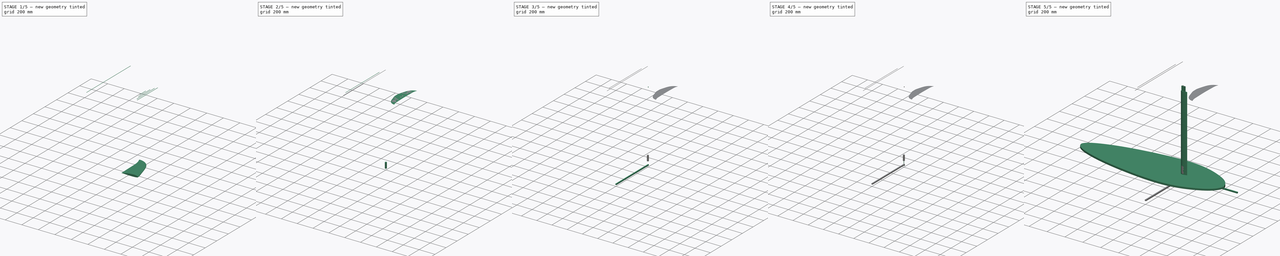
[diagram: build sequence overview — one tinted view per stage of 5, left to right]
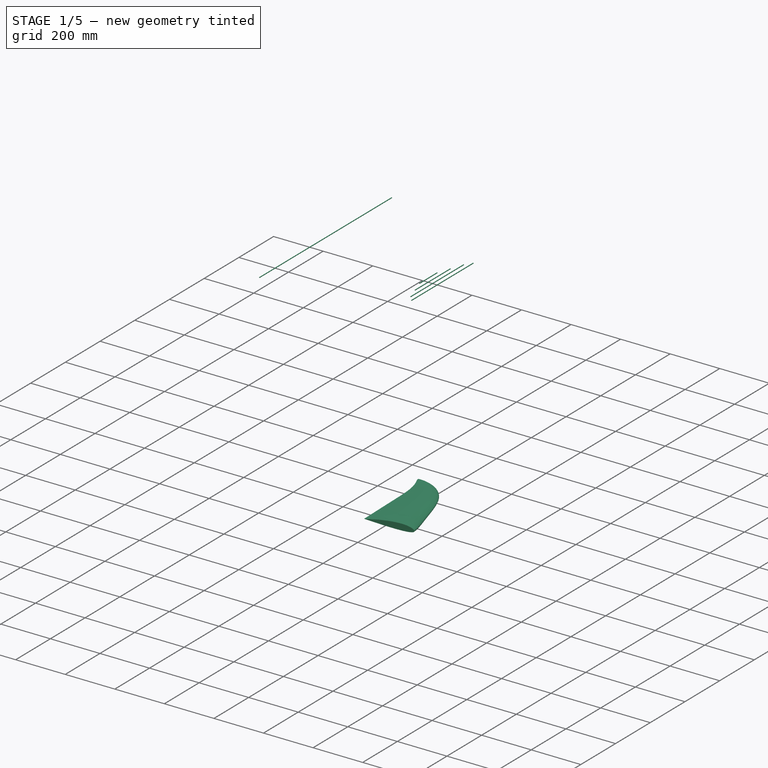
[diagram: stage 1 of 5 — iso view after this stage's code; geometry added in this stage tinted green]
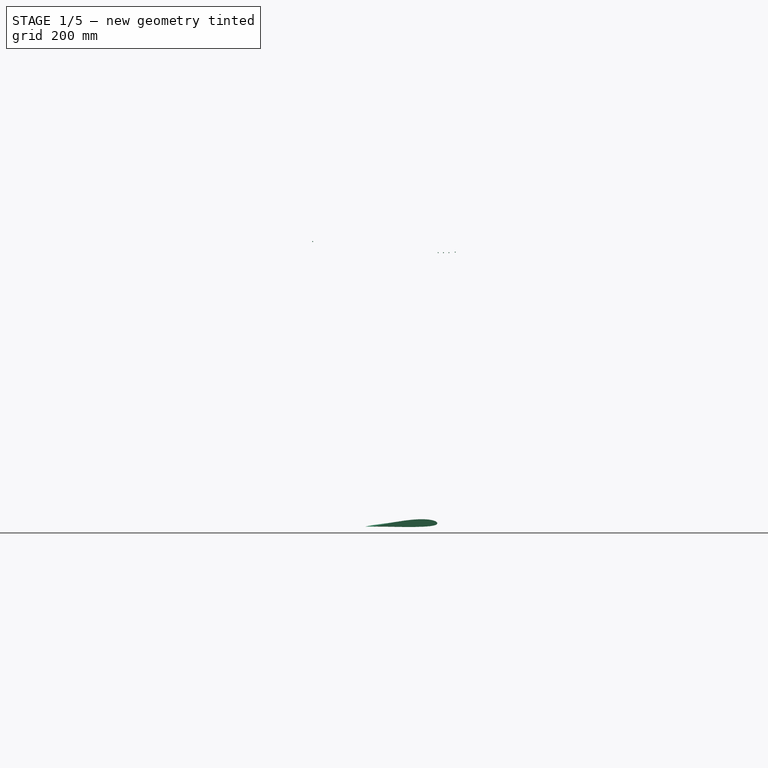
[diagram: stage 1 of 5 — front view after this stage's code; geometry added in this stage tinted green]
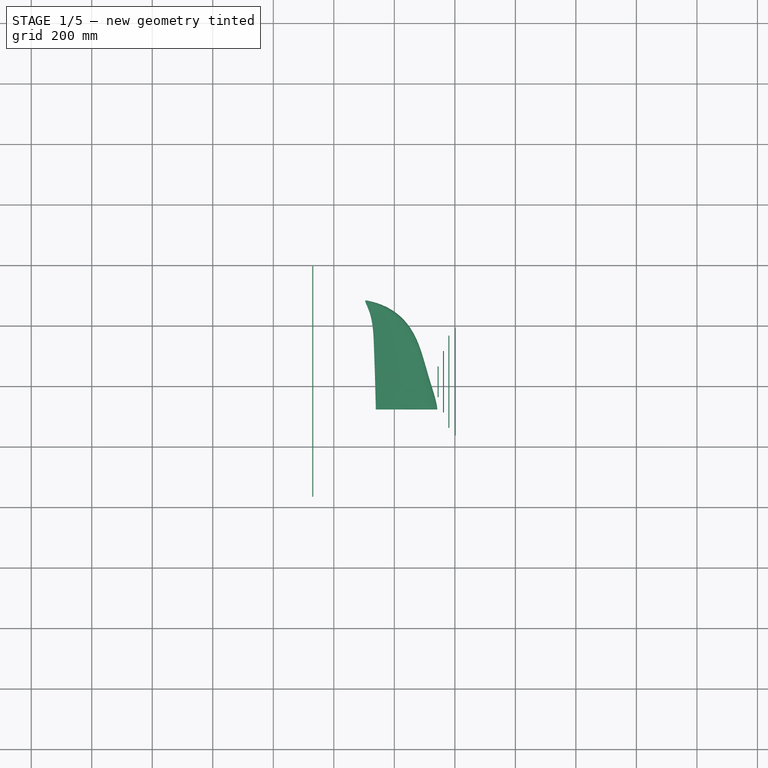
[diagram: stage 1 of 5 — top view after this stage's code; geometry added in this stage tinted green]
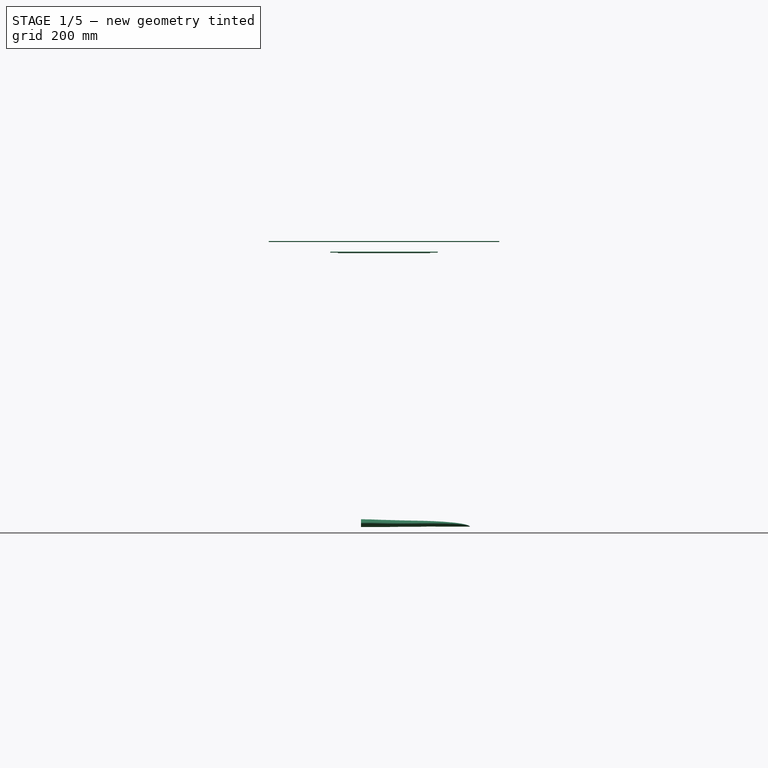
[diagram: stage 1 of 5 — right view after this stage's code; geometry added in this stage tinted green]
FCSTD DOCUMENT  (FreeCAD 0.21R33771 (Git))
Label: project1
License: All rights reserved
LicenseURL: https://en.wikipedia.org/wiki/All_rights_reserved
objects: Sketcher::SketchObject×23, PartDesign::Body×15, PartDesign::Pad×12, Part::Cylinder×9, App::DocumentObjectGroup×4, PartDesign::Fillet×2, PartDesign::AdditiveLoft×2, Part::FeaturePython×2, App::MeasureDistance×2, Part::Part2DObjectPython×1, Part::Mirroring×1, PartDesign::FeatureBase×1, Part::Helix×1
note: 85 computed .brp shape members not serialized (recipe doc carries the construction recipe); baked Part::Feature solids carry a one-line shape summary decoded from their .brp

FEATURE [PartDesign::Body] Body002  label="Board"
  Group = -> [Sketch003,Pad002,Fillet,Fillet001]
  Origin = -> Origin002
  Tip = -> Fillet001
FEATURE [Sketcher::SketchObject] Sketch006
  FullyConstrained = true
  MapMode = 5
  Placement = pos=(0,0,0) rot=(1,0,0;1.5708rad)
  Support = -> [XZ_Plane007]
  sketch-geometry (9):
    g0-g4: Circle x5 (B-spline internal-alignment scaffolding for g5; pole/knot coordinates omitted)
    g5: BSplineCurve PolesCount=5 KnotsCount=3 Degree=3 IsPeriodic=0
    g6: GeomPoint X=-61.1896 Y=1.55299 Z=0
    g7: GeomPoint X=141.928 Y=11.8848 Z=0
    g8: GeomPoint X=-61.1896 Y=1.55299 Z=0
  constraints (15):
    c: Weight(g0) = 1
    c: Equal(g0, g1-g4) x4
    c: Coincident(g5,g0)
    c: InternalAlignment(g0-g4 -> g5) x5
    c: InternalAlignment(g6,g5)
    c: InternalAlignment(g7,g5)
    c: InternalAlignment(g8,g5)
    c: DistanceX(g3) = 103.059
    c: DistanceY(g3) = -5.38655
    c: DistanceX(g1) = 89.7287
    c: DistanceY(g1) = 37.6307
    c: DistanceX(g2) = 187.462
    c: DistanceY(g2) = 7.64757
    c: DistanceX(g5) = -61.1896
    c: DistanceY(g5) = 1.55299
FEATURE [Part::Part2DObjectPython] Clone2D001  label="Wing100"  # Draft 2D object (typed FeaturePython)
  Fuse = false
  Placement = pos=(0,0,0) rot=(1,0,0;1.5708rad)
  Scale = (1,1,1)
FEATURE [Sketcher::SketchObject] Sketch007  label="Wing5"
  FullyConstrained = false
  Placement = pos=(-95.25,284.48,0) rot=(0.995037,0,0.099504;1.5708rad)
  sketch-geometry (1):
    g0: BSplineCurve PolesCount=5 KnotsCount=3 Degree=3 IsPeriodic=0
FEATURE [Sketcher::SketchObject] Sketch008  label="Wing4"
  FullyConstrained = false
  Placement = pos=(-88.9,279.4,0) rot=(0.998205,0,0.059892;1.5708rad)
  sketch-geometry (1):
    g0: BSplineCurve PolesCount=5 KnotsCount=3 Degree=3 IsPeriodic=0
FEATURE [Sketcher::SketchObject] Sketch009  label="Wing3"
  FullyConstrained = false
  Placement = pos=(-63.5,254,0) rot=(0.999201,0,0.039968;1.5708rad)
  sketch-geometry (1):
    g0: BSplineCurve PolesCount=5 KnotsCount=3 Degree=3 IsPeriodic=0
FEATURE [Sketcher::SketchObject] Sketch010  label="Wing2"
  FullyConstrained = false
  Placement = pos=(-25.4,152.4,0) rot=(0.9998,0,0.019996;1.5708rad)
  sketch-geometry (1):
    g0: BSplineCurve PolesCount=5 KnotsCount=3 Degree=3 IsPeriodic=0
FEATURE [Sketcher::SketchObject] Sketch011  label="Wing1"
  FullyConstrained = false
  Placement = pos=(0,-76.2,0) rot=(1,0,0;1.5708rad)
  sketch-geometry (1):
    g0: BSplineCurve PolesCount=5 KnotsCount=3 Degree=3 IsPeriodic=0
FEATURE [Sketcher::SketchObject] Sketch012  label="Wing1.5"
  FullyConstrained = false
  Placement = pos=(-12.7,50.8,0) rot=(-1,0,0;1.5708rad)
  sketch-geometry (1):
    g0: BSplineCurve PolesCount=5 KnotsCount=3 Degree=3 IsPeriodic=0
FEATURE [Sketcher::SketchObject] Sketch013  label="Wing1.25"
  FullyConstrained = false
  Placement = pos=(-3.81,-25.4,0) rot=(-1,0,0;1.5708rad)
  sketch-geometry (1):
    g0: BSplineCurve PolesCount=5 KnotsCount=3 Degree=3 IsPeriodic=0
FEATURE [Sketcher::SketchObject] Sketch014  label="Wing0"
  FullyConstrained = false
  Placement = pos=(0,-127,0) rot=(-1,0,0;1.5708rad)
  sketch-geometry (1):
    g0: BSplineCurve PolesCount=5 KnotsCount=3 Degree=3 IsPeriodic=0
FEATURE [Sketcher::SketchObject] Sketch015  label="Wing-1"
  FullyConstrained = false
  Placement = pos=(0,-177.8,0) rot=(-1,0,0;1.5708rad)
  sketch-geometry (1):
    g0: BSplineCurve PolesCount=5 KnotsCount=3 Degree=3 IsPeriodic=0
FEATURE [PartDesign::AdditiveLoft] AdditiveLoft
  Closed = false
  Placement = pos=(-95.25,284.48,0) rot=(0.995037,0,0.099504;1.5708rad)
  Profile = -> Sketch007 [Edge1]
  Ruled = false
  Sections = -> [Sketch008,Sketch009,Sketch010,Sketch012,Sketch013,Sketch011]
FEATURE [App::DocumentObjectGroup] Group002  label="Battery"
  Group = -> [Cylinder003]
FEATURE [Part::Cylinder] Cylinder004
  Angle = 360
  AttacherType = Attacher::AttachEngine3D
  FirstAngle = 0
  Height = 101.6
  Placement = pos=(144.78,-50.8,905.256) rot=(-1,0,0;1.5708rad)
  Radius = 1.5875
  SecondAngle = 0
  expr: .Placement.Base.z = 2.97 '
FEATURE [Part::Cylinder] Cylinder005
  Angle = 360
  AttacherType = Attacher::AttachEngine3D
  FirstAngle = 0
  Height = 203.2
  Placement = pos=(162.56,-101.6,905.26) rot=(-1,0,0;1.5708rad)
  Radius = 1.5875
  SecondAngle = 0
FEATURE [Part::Cylinder] Cylinder006
  Angle = 360
  AttacherType = Attacher::AttachEngine3D
  FirstAngle = 0
  Height = 304.8
  Placement = pos=(180.34,-152.4,905.26) rot=(-1,0,0;1.5708rad)
  Radius = 1.5875
  SecondAngle = 0
FEATURE [Part::Cylinder] Cylinder007
  Angle = 360
  AttacherType = Attacher::AttachEngine3D
  FirstAngle = 0
  Height = 355.6
  Placement = pos=(201.422,-177.8,907.034) rot=(-1,0,0;1.5708rad)
  Radius = 1.5875
  SecondAngle = 0
  expr: .Placement.Base.z = 2.97 '
FEATURE [App::DocumentObjectGroup] Group003  label="BackWing001"
  Group = -> [Clone,Cylinder004,Cylinder005,Cylinder006,Cylinder007]
FEATURE [Part::Cylinder] Cylinder008
  Angle = 360
  AttacherType = Attacher::AttachEngine3D
  FirstAngle = 0
  Height = 762
  Placement = pos=(-269.748,-381,942.086) rot=(-1,0,0;1.5708rad)
  Radius = 1.5875
  SecondAngle = 0
FEATURE [App::DocumentObjectGroup] Group001  label="Group"
  Group = -> [Body015,Body016,Body017,Body018,Body020,Cylinder002,Cylinder008]
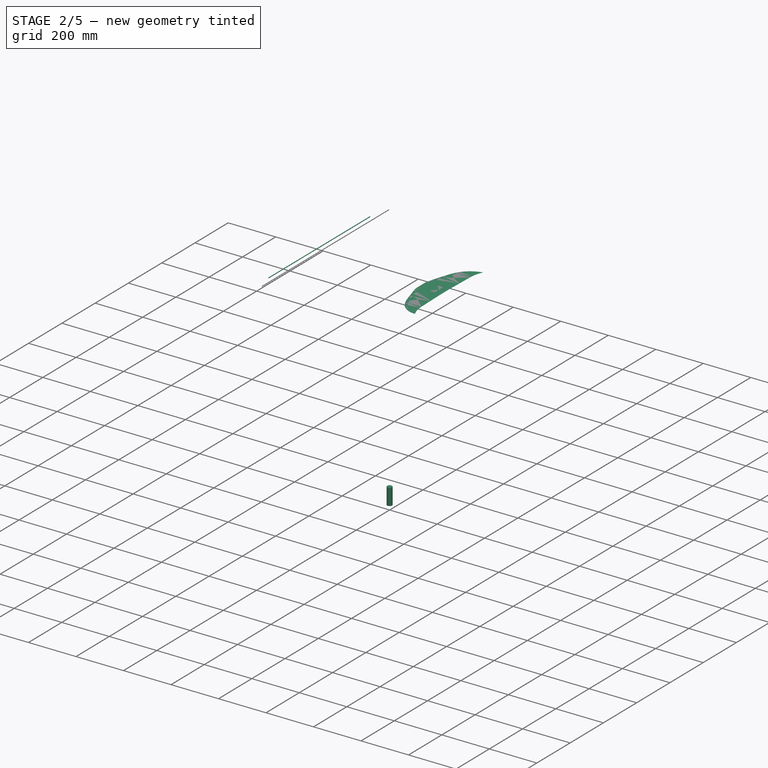
[diagram: stage 2 of 5 — iso view after this stage's code; geometry added in this stage tinted green]
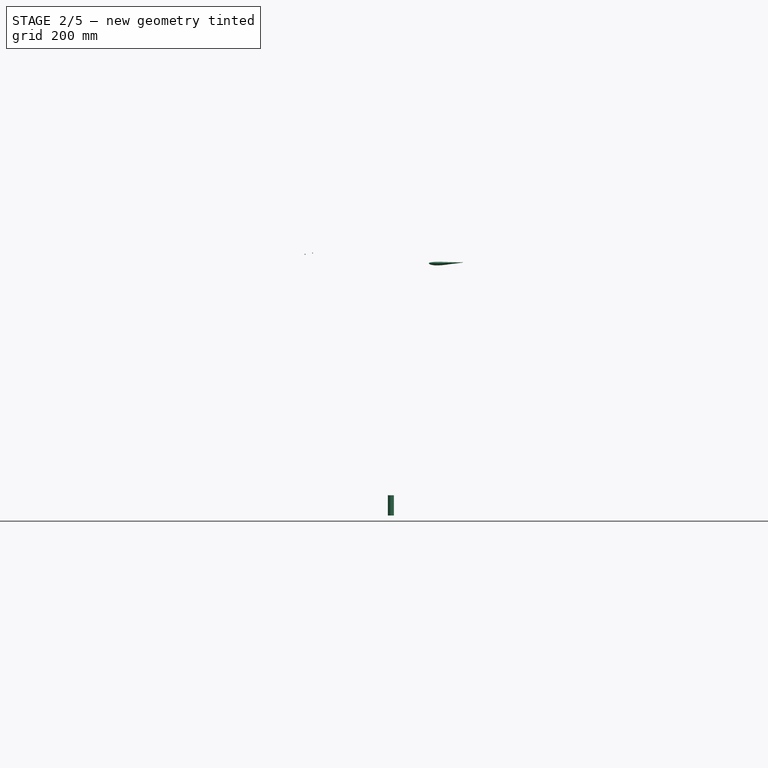
[diagram: stage 2 of 5 — front view after this stage's code; geometry added in this stage tinted green]
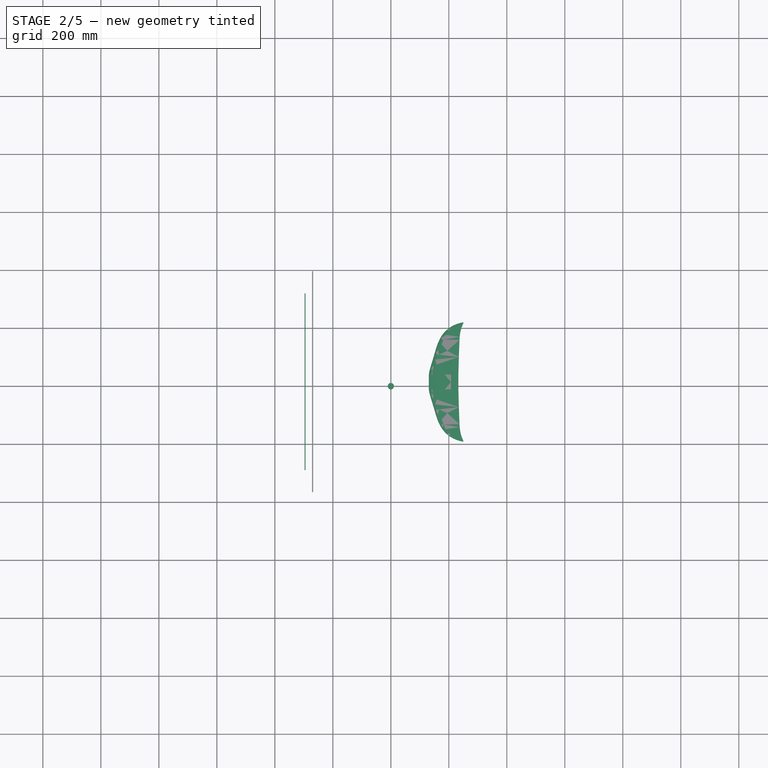
[diagram: stage 2 of 5 — top view after this stage's code; geometry added in this stage tinted green]
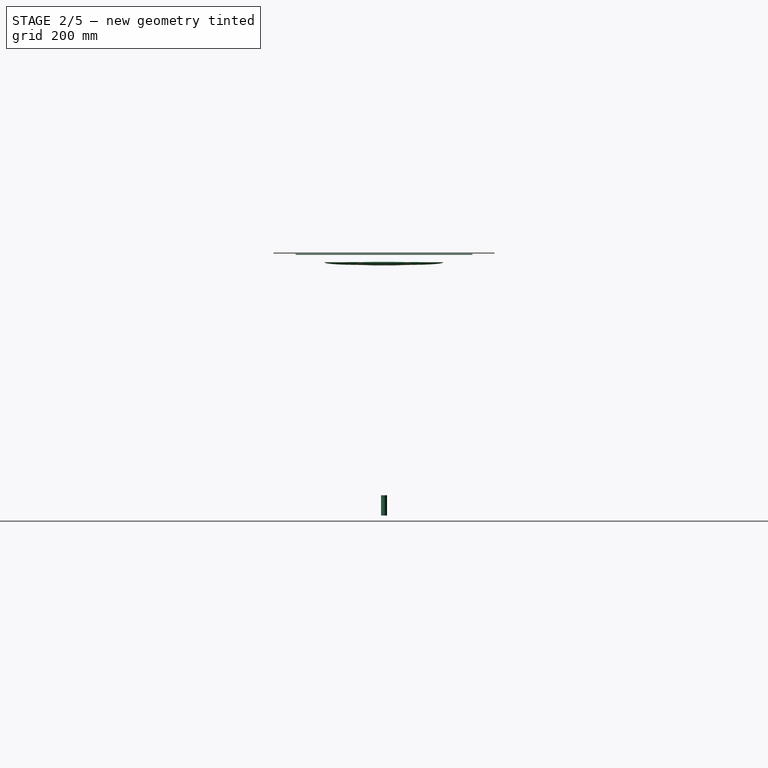
[diagram: stage 2 of 5 — right view after this stage's code; geometry added in this stage tinted green]
FEATURE [PartDesign::AdditiveLoft] AdditiveLoft001
  BaseFeature = -> AdditiveLoft
  Closed = false
  Placement = pos=(-95.25,284.48,0) rot=(0.995037,0,0.099504;1.5708rad)
  Profile = -> Sketch011
  Ruled = false
  Sections = -> [Sketch014]
FEATURE [PartDesign::Body] Body007  label="Front Wing"
  Group = -> [Sketch006,Clone2D001,Sketch007,Sketch008,Sketch009,Sketch010,Sketch011,Sketch012,Sketch013,Sketch014,AdditiveLoft,Sketch015,AdditiveLoft001]
  Origin = -> Origin007
  Tip = -> AdditiveLoft001
FEATURE [Part::Mirroring] Part__Mirroring  label="AdditiveLoft001 (Mirror #1)"
  Base = (0,0,0)
  Normal = (0,0,1)
  Placement = pos=(0,-253.999,3.1e-14) rot=(1,0,0;3.14159rad)
  Source = -> AdditiveLoft001
FEATURE [Part::FeaturePython] Connect  label="Front Wing001"  # WARN: FeaturePython — macro-defined, semantics opaque (R4)
  Objects = -> [Part__Mirroring,Body007]
  Placement = pos=(-312.834,126,944.195) rot=(0,1,0;3.12414rad)
  Tolerance = 0
FEATURE [Part::FeaturePython] Clone  label="BackWing"  # Draft clone (typed FeaturePython)
  AttacherType = Attacher::AttachEngine3D
  Fuse = false
  Objects = -> [Connect]
  Placement = pos=(202.322,62.9999,910.728) rot=(0,1,0;3.15905rad)
  Scale = (0.5,0.5,0.5)
FEATURE [Part::Cylinder] Cylinder002
  Angle = 360
  AttacherType = Attacher::AttachEngine3D
  FirstAngle = 0
  Height = 609.6
  Placement = pos=(-295.91,-304.8,937.768) rot=(-1,0,0;1.5708rad)
  Radius = 1.5875
  SecondAngle = 0
FEATURE [Part::Cylinder] Cylinder003  label="BatteryCell"
  Angle = 360
  AttacherType = Attacher::AttachEngine3D
  FirstAngle = 0
  Height = 69.85
  Placement = pos=(0,0,36.9999) rot=(0,0,1;0rad)
  Radius = 10.414
  SecondAngle = 0
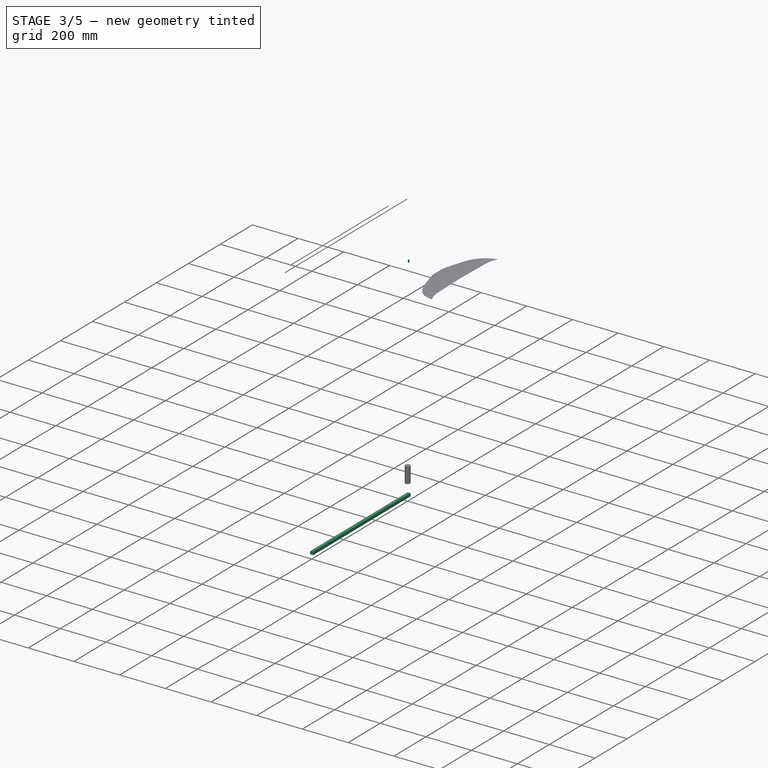
[diagram: stage 3 of 5 — iso view after this stage's code; geometry added in this stage tinted green]
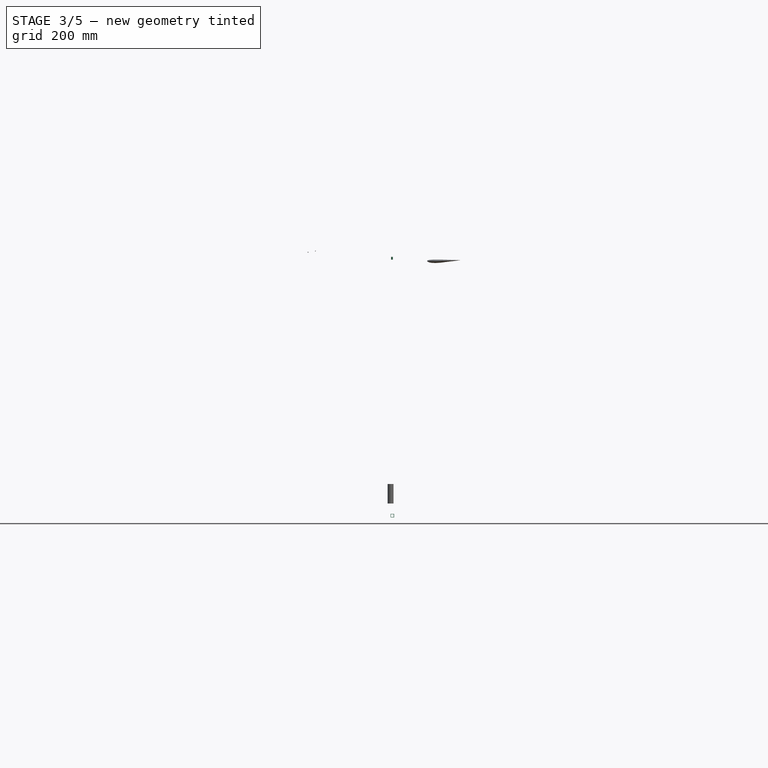
[diagram: stage 3 of 5 — front view after this stage's code; geometry added in this stage tinted green]
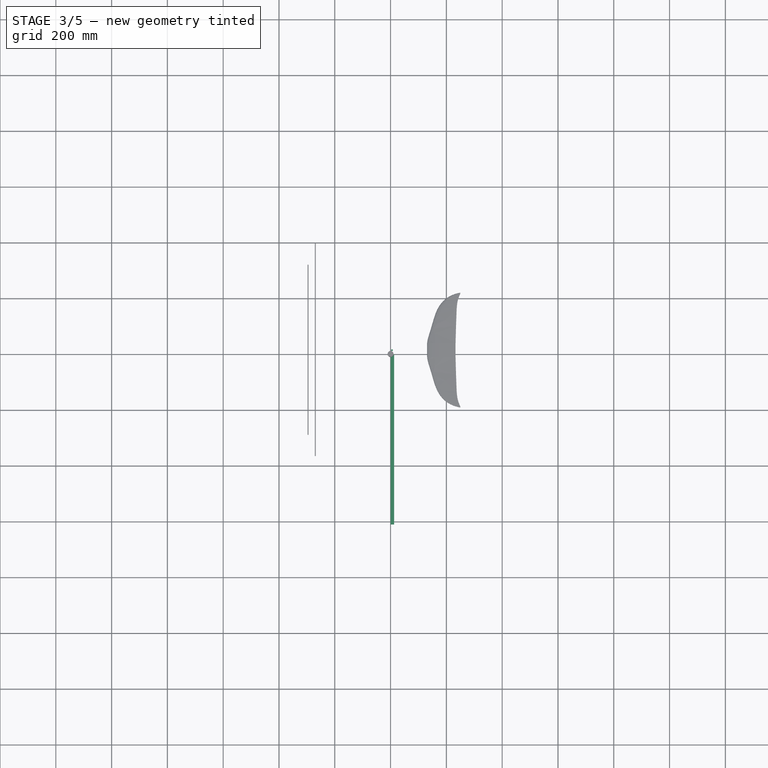
[diagram: stage 3 of 5 — top view after this stage's code; geometry added in this stage tinted green]
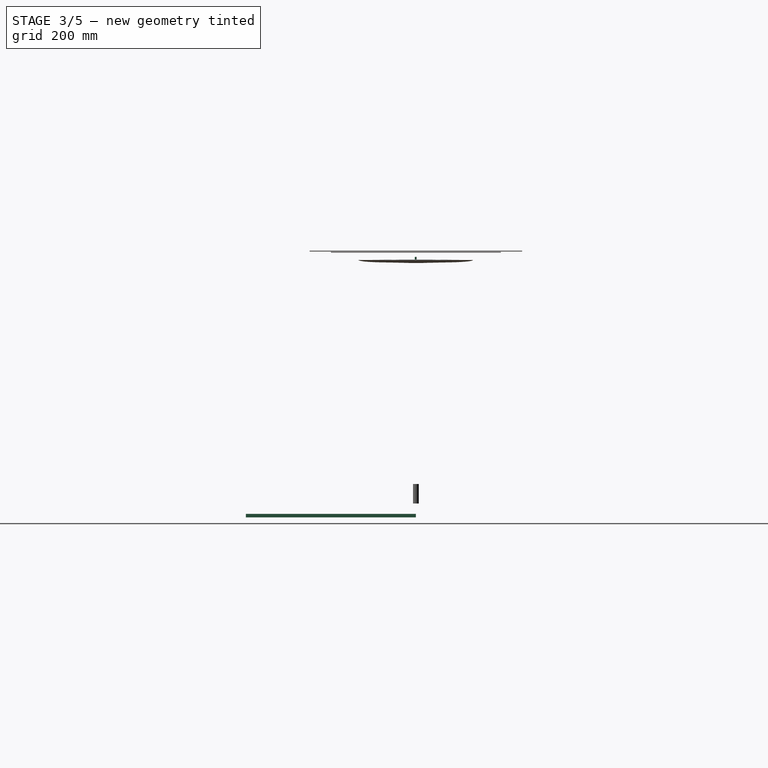
[diagram: stage 3 of 5 — right view after this stage's code; geometry added in this stage tinted green]
FEATURE [PartDesign::Body] Body015  label="Body016"
  Group = -> [Sketch022,Pad008]
  Origin = -> Origin015
  Placement = pos=(-418.998,50.8,939.8) rot=(0,0,1;0rad)
  Tip = -> Pad008
FEATURE [Sketcher::SketchObject] Sketch023
  FullyConstrained = true
  MapMode = 5
  Placement = pos=(0,0,0) rot=(1,0,0;1.5708rad)
  Support = -> [XZ_Plane016]
  sketch-geometry (8):
    g0: LineSegment StartX=0 StartY=0 StartZ=0 EndX=12.7 EndY=0 EndZ=0
    g1: LineSegment StartX=12.7 StartY=0 StartZ=0 EndX=12.7 EndY=-12.7 EndZ=0
    g2: LineSegment StartX=12.7 StartY=-12.7 StartZ=0 EndX=0 EndY=-12.7 EndZ=0
    g3: LineSegment StartX=0 StartY=-12.7 StartZ=0 EndX=0 EndY=0 EndZ=0
    g4: LineSegment StartX=1.6002 StartY=-1.6002 StartZ=0 EndX=11.0998 EndY=-1.6002 EndZ=0
    g5: LineSegment StartX=11.0998 StartY=-1.6002 StartZ=0 EndX=11.0998 EndY=-11.0998 EndZ=0
    g6: LineSegment StartX=11.0998 StartY=-11.0998 StartZ=0 EndX=1.6002 EndY=-11.0998 EndZ=0
    g7: LineSegment StartX=1.6002 StartY=-11.0998 StartZ=0 EndX=1.6002 EndY=-1.6002 EndZ=0
  constraints (23):
    c: Coincident(g0,g1)
    c: Coincident(g1,g2)
    c: Coincident(g2,g3)
    c: Coincident(g3,g0)
    c: Horizontal(g0)
    c: Horizontal(g2)
    c: Vertical(g1)
    c: Vertical(g3)
    c: Coincident(g0,g-1)
    c: Coincident(g4,g5)
    c: Coincident(g5,g6)
    c: Coincident(g6,g7)
    c: Coincident(g7,g4)
    c: Horizontal(g4)
    c: Horizontal(g6)
    c: Vertical(g5)
    c: Vertical(g7)
    c: DistanceX(g2,g1) = 12.7
    c: DistanceY(g2,g0) = 12.7
    c: DistanceY(g2,g6) = 1.6002
    c: DistanceY(g4,g0) = 1.6002
    c: DistanceX(g0,g4) = 1.6002
    c: DistanceX(g4,g0) = 1.6002
FEATURE [PartDesign::Pad] Pad009
  Direction = (0,-1,-2e-16)
  Length = 381
  Length2 = 10
  Placement = pos=(0,0,0) rot=(1,0,0;1.5708rad)
  Profile = -> Sketch023
  ReferenceAxis = -> Sketch023 [N_Axis]
  Type = 0
FEATURE [PartDesign::Body] Body016  label="Body017"
  Group = -> [Sketch023,Pad009]
  Origin = -> Origin016
  Placement = pos=(-393.598,190.5,939.8) rot=(0,0,1;0rad)
  Tip = -> Pad009
FEATURE [Sketcher::SketchObject] Sketch024
  FullyConstrained = true
  MapMode = 5
  Placement = pos=(0,0,0) rot=(1,0,0;1.5708rad)
  Support = -> [XZ_Plane017]
  sketch-geometry (8):
    g0: LineSegment StartX=0 StartY=0 StartZ=0 EndX=12.7 EndY=0 EndZ=0
    g1: LineSegment StartX=12.7 StartY=0 StartZ=0 EndX=12.7 EndY=-12.7 EndZ=0
    g2: LineSegment StartX=12.7 StartY=-12.7 StartZ=0 EndX=0 EndY=-12.7 EndZ=0
    g3: LineSegment StartX=0 StartY=-12.7 StartZ=0 EndX=0 EndY=0 EndZ=0
    g4: LineSegment StartX=1.6002 StartY=-1.6002 StartZ=0 EndX=11.0998 EndY=-1.6002 EndZ=0
    g5: LineSegment StartX=11.0998 StartY=-1.6002 StartZ=0 EndX=11.0998 EndY=-11.0998 EndZ=0
    g6: LineSegment StartX=11.0998 StartY=-11.0998 StartZ=0 EndX=1.6002 EndY=-11.0998 EndZ=0
    g7: LineSegment StartX=1.6002 StartY=-11.0998 StartZ=0 EndX=1.6002 EndY=-1.6002 EndZ=0
  constraints (23):
    c: Coincident(g0,g1)
    c: Coincident(g1,g2)
    c: Coincident(g2,g3)
    c: Coincident(g3,g0)
    c: Horizontal(g0)
    c: Horizontal(g2)
    c: Vertical(g1)
    c: Vertical(g3)
    c: Coincident(g0,g-1)
    c: Coincident(g4,g5)
    c: Coincident(g5,g6)
    c: Coincident(g6,g7)
    c: Coincident(g7,g4)
    c: Horizontal(g4)
    c: Horizontal(g6)
    c: Vertical(g5)
    c: Vertical(g7)
    c: DistanceX(g2,g1) = 12.7
    c: DistanceY(g2,g0) = 12.7
    c: DistanceY(g2,g6) = 1.6002
    c: DistanceY(g4,g0) = 1.6002
    c: DistanceX(g0,g4) = 1.6002
    c: DistanceX(g4,g0) = 1.6002
FEATURE [PartDesign::Pad] Pad010
  Direction = (0,-1,-2e-16)
  Length = 50.8
  Length2 = 10
  Placement = pos=(0,0,0) rot=(1,0,0;1.5708rad)
  Profile = -> Sketch024
  ReferenceAxis = -> Sketch024 [N_Axis]
  Type = 0
FEATURE [PartDesign::Body] Body017  label="Body018"
  Group = -> [Sketch024,Pad010]
  Origin = -> Origin017
  Placement = pos=(139.7,-6.35,914.4) rot=(0,0,1;1.5708rad)
  Tip = -> Pad010
FEATURE [Sketcher::SketchObject] Sketch025
  FullyConstrained = true
  MapMode = 5
  Placement = pos=(0,0,0) rot=(1,0,0;1.5708rad)
  Support = -> [XZ_Plane018]
  sketch-geometry (8):
    g0: LineSegment StartX=0 StartY=0 StartZ=0 EndX=12.7 EndY=0 EndZ=0
    g1: LineSegment StartX=12.7 StartY=0 StartZ=0 EndX=12.7 EndY=-12.7 EndZ=0
    g2: LineSegment StartX=12.7 StartY=-12.7 StartZ=0 EndX=0 EndY=-12.7 EndZ=0
    g3: LineSegment StartX=0 StartY=-12.7 StartZ=0 EndX=0 EndY=0 EndZ=0
    g4: LineSegment StartX=1.6002 StartY=-1.6002 StartZ=0 EndX=11.0998 EndY=-1.6002 EndZ=0
    g5: LineSegment StartX=11.0998 StartY=-1.6002 StartZ=0 EndX=11.0998 EndY=-11.0998 EndZ=0
    g6: LineSegment StartX=11.0998 StartY=-11.0998 StartZ=0 EndX=1.6002 EndY=-11.0998 EndZ=0
    g7: LineSegment StartX=1.6002 StartY=-11.0998 StartZ=0 EndX=1.6002 EndY=-1.6002 EndZ=0
  constraints (23):
    c: Coincident(g0,g1)
    c: Coincident(g1,g2)
    c: Coincident(g2,g3)
    c: Coincident(g3,g0)
    c: Horizontal(g0)
    c: Horizontal(g2)
    c: Vertical(g1)
    c: Vertical(g3)
    c: Coincident(g0,g-1)
    c: Coincident(g4,g5)
    c: Coincident(g5,g6)
    c: Coincident(g6,g7)
    c: Coincident(g7,g4)
    c: Horizontal(g4)
    c: Horizontal(g6)
    c: Vertical(g5)
    c: Vertical(g7)
    c: DistanceX(g2,g1) = 12.7
    c: DistanceY(g2,g0) = 12.7
    c: DistanceY(g2,g6) = 1.6002
    c: DistanceY(g4,g0) = 1.6002
    c: DistanceX(g0,g4) = 1.6002
    c: DistanceX(g4,g0) = 1.6002
FEATURE [PartDesign::Pad] Pad011
  Direction = (0,-1,-2e-16)
  Length = 457.2
  Length2 = 10
  Placement = pos=(0,0,0) rot=(1,0,0;1.5708rad)
  Profile = -> Sketch025
  ReferenceAxis = -> Sketch025 [N_Axis]
  Type = 0
FEATURE [PartDesign::Body] Body018  label="Body019"
  Group = -> [Sketch025,Pad011]
  Origin = -> Origin018
  Placement = pos=(-368.198,228.6,939.8) rot=(0,0,1;0rad)
  Tip = -> Pad011
FEATURE [Sketcher::SketchObject] Sketch027
  FullyConstrained = true
  MapMode = 5
  Placement = pos=(0,0,0) rot=(1,0,0;1.5708rad)
  Support = -> [XZ_Plane020]
  sketch-geometry (8):
    g0: LineSegment StartX=0 StartY=0 StartZ=0 EndX=12.7 EndY=0 EndZ=0
    g1: LineSegment StartX=12.7 StartY=0 StartZ=0 EndX=12.7 EndY=-12.7 EndZ=0
    g2: LineSegment StartX=12.7 StartY=-12.7 StartZ=0 EndX=0 EndY=-12.7 EndZ=0
    g3: LineSegment StartX=0 StartY=-12.7 StartZ=0 EndX=0 EndY=0 EndZ=0
    g4: LineSegment StartX=1.6002 StartY=-1.6002 StartZ=0 EndX=11.0998 EndY=-1.6002 EndZ=0
    g5: LineSegment StartX=11.0998 StartY=-1.6002 StartZ=0 EndX=11.0998 EndY=-11.0998 EndZ=0
    g6: LineSegment StartX=11.0998 StartY=-11.0998 StartZ=0 EndX=1.6002 EndY=-11.0998 EndZ=0
    g7: LineSegment StartX=1.6002 StartY=-11.0998 StartZ=0 EndX=1.6002 EndY=-1.6002 EndZ=0
  constraints (23):
    c: Coincident(g0,g1)
    c: Coincident(g1,g2)
    c: Coincident(g2,g3)
    c: Coincident(g3,g0)
    c: Horizontal(g0)
    c: Horizontal(g2)
    c: Vertical(g1)
    c: Vertical(g3)
    c: Coincident(g0,g-1)
    c: Coincident(g4,g5)
    c: Coincident(g5,g6)
    c: Coincident(g6,g7)
    c: Coincident(g7,g4)
    c: Horizontal(g4)
    c: Horizontal(g6)
    c: Vertical(g5)
    c: Vertical(g7)
    c: DistanceX(g2,g1) = 12.7
    c: DistanceY(g2,g0) = 12.7
    c: DistanceY(g2,g6) = 1.6002
    c: DistanceY(g4,g0) = 1.6002
    c: DistanceX(g0,g4) = 1.6002
    c: DistanceX(g4,g0) = 1.6002
FEATURE [PartDesign::Pad] Pad013
  Direction = (0,-1,-2e-16)
  Length = 609.6
  Length2 = 10
  Placement = pos=(0,0,0) rot=(1,0,0;1.5708rad)
  Profile = -> Sketch027
  ReferenceAxis = -> Sketch027 [N_Axis]
  Type = 0
FEATURE [PartDesign::Body] Body020  label="Body021"
  Group = -> [Sketch027,Pad013]
  Origin = -> Origin020
  Placement = pos=(-342.798,304.8,939.8) rot=(0,0,1;0rad)
  Tip = -> Pad013
FEATURE [Part::Cylinder] Cylinder001
  Angle = 360
  AttacherType = Attacher::AttachEngine3D
  FirstAngle = 0
  Height = 9.906
  Placement = pos=(5.08,-0.86,911.35) rot=(0,0,1;0rad)
  Radius = 3.048
  SecondAngle = 0
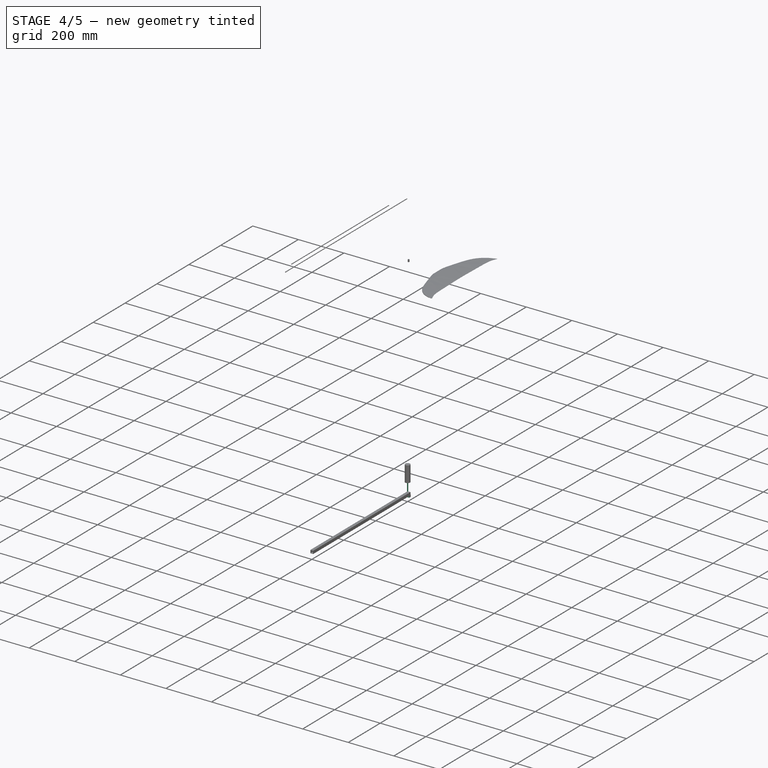
[diagram: stage 4 of 5 — iso view after this stage's code; geometry added in this stage tinted green]
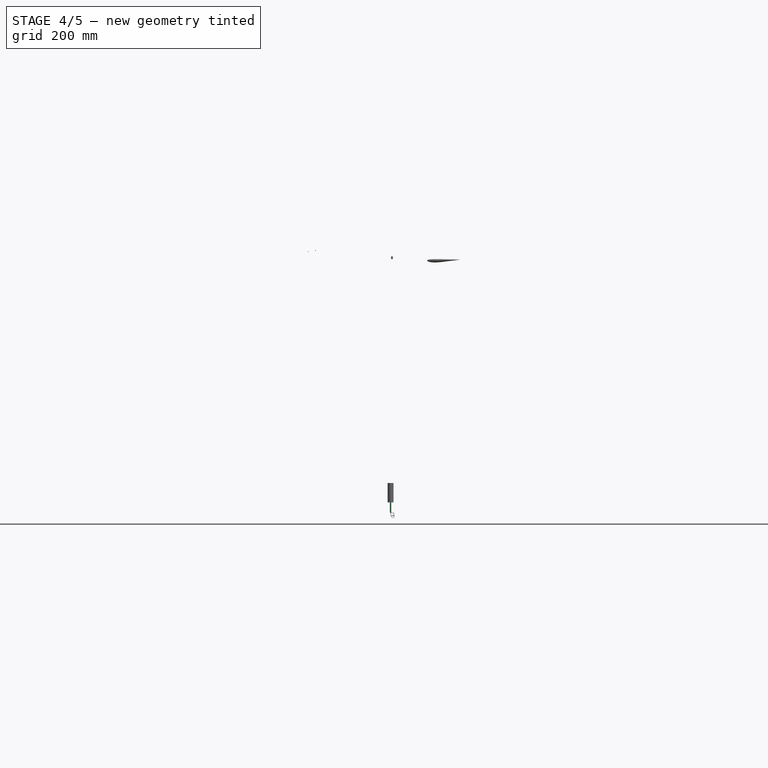
[diagram: stage 4 of 5 — front view after this stage's code; geometry added in this stage tinted green]
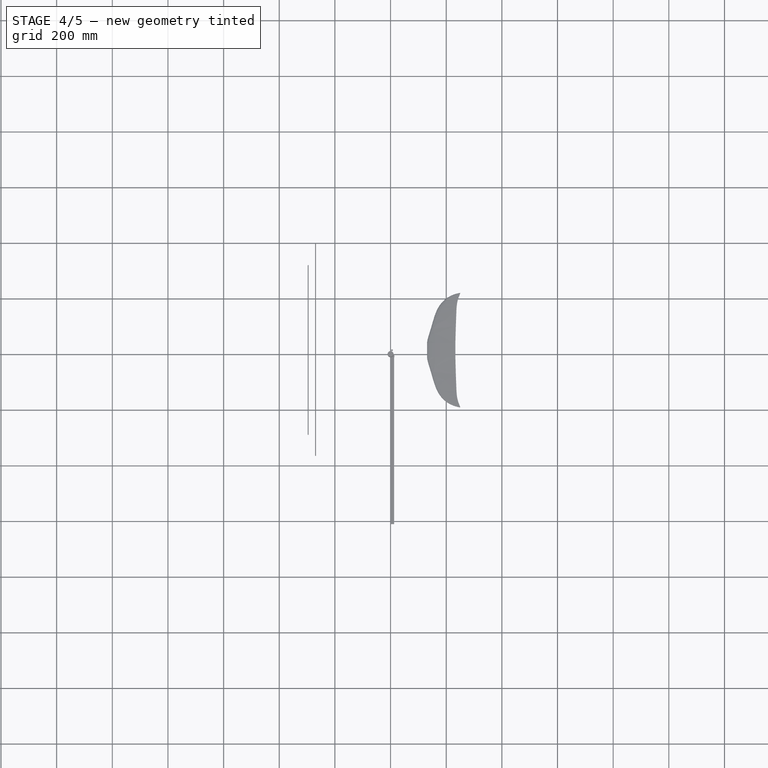
[diagram: stage 4 of 5 — top view after this stage's code; geometry added in this stage tinted green]
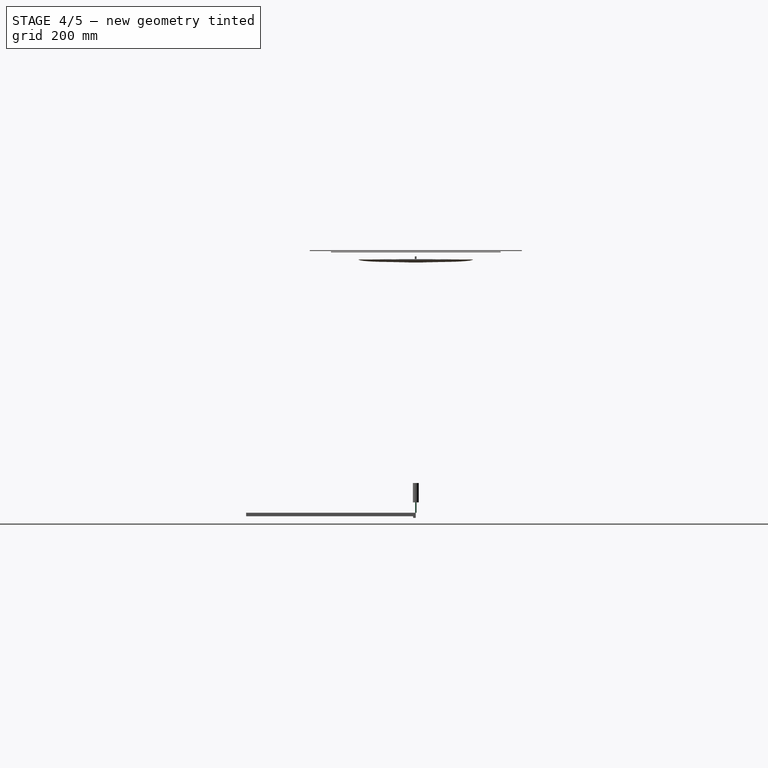
[diagram: stage 4 of 5 — right view after this stage's code; geometry added in this stage tinted green]
FEATURE [PartDesign::Body] Body010  label="MastStruct"
  Group = -> [Sketch018,Pad004]
  Origin = -> Origin010
  Tip = -> Pad004
FEATURE [Part::Cylinder] Cylinder
  Angle = 360
  AttacherType = Attacher::AttachEngine3D
  FirstAngle = 0
  Height = 45.72
  Placement = pos=(-23.88,0,908.3) rot=(0,1,0;1.5708rad)
  Radius = 2.3622
  SecondAngle = 0
FEATURE [Sketcher::SketchObject] Sketch019
  FullyConstrained = true
  MapMode = 5
  Placement = pos=(0,0,0) rot=(1,0,0;1.5708rad)
  Support = -> [XZ_Plane011]
  sketch-geometry (8):
    g0: LineSegment StartX=4.08905 StartY=-9.05917 StartZ=0 EndX=13.6141 EndY=-9.05917 EndZ=0
    g1: LineSegment StartX=13.6141 StartY=-9.05917 StartZ=0 EndX=13.6141 EndY=-18.5842 EndZ=0
    g2: LineSegment StartX=13.6141 StartY=-18.5842 StartZ=0 EndX=4.08905 EndY=-18.5842 EndZ=0
    g3: LineSegment StartX=4.08905 StartY=-18.5842 StartZ=0 EndX=4.08905 EndY=-9.05917 EndZ=0
    g4: LineSegment StartX=4.97805 StartY=-9.94817 StartZ=0 EndX=12.7251 EndY=-9.94817 EndZ=0
    g5: LineSegment StartX=12.7251 StartY=-9.94817 StartZ=0 EndX=12.7251 EndY=-17.6952 EndZ=0
    g6: LineSegment StartX=12.7251 StartY=-17.6952 StartZ=0 EndX=4.97805 EndY=-17.6952 EndZ=0
    g7: LineSegment StartX=4.97805 StartY=-17.6952 StartZ=0 EndX=4.97805 EndY=-9.94817 EndZ=0
  constraints (24):
    c: Coincident(g0,g1)
    c: Coincident(g1,g2)
    c: Coincident(g2,g3)
    c: Coincident(g3,g0)
    c: Horizontal(g0)
    c: Horizontal(g2)
    c: Vertical(g1)
    c: Vertical(g3)
    c: Coincident(g4,g5)
    c: Coincident(g5,g6)
    c: Coincident(g6,g7)
    c: Coincident(g7,g4)
    c: Horizontal(g4)
    c: Horizontal(g6)
    c: Vertical(g5)
    c: Vertical(g7)
    c: DistanceX(g0,g4) = 0.889
    c: DistanceX(g0,g0) = 9.525
    c: DistanceX(g4,g0) = 0.889
    c: DistanceY(g2,g0) = 9.525
    c: DistanceY(g4,g0) = 0.889
    c: DistanceY(g2,g6) = 0.889
    c: DistanceX(g0) = 4.08905
    c: DistanceY(g0) = -9.05917
FEATURE [PartDesign::Pad] Pad005
  Direction = (0,-1,2e-16)
  Length = 9.525
  Length2 = 10
  Placement = pos=(0,0,0) rot=(1,0,0;1.5708rad)
  Profile = -> Sketch019
  ReferenceAxis = -> Sketch019 [N_Axis]
  Type = 0
FEATURE [PartDesign::Body] Body011  label="SteelConnector1"
  Group = -> [Sketch019,Pad005]
  Origin = -> Origin011
  Placement = pos=(-16.764,4.826,923.29) rot=(0,0,1;0rad)
  Tip = -> Pad005
FEATURE [Sketcher::SketchObject] Sketch020
  FullyConstrained = true
  MapMode = 5
  Placement = pos=(0,0,0) rot=(1,0,0;1.5708rad)
  Support = -> [XZ_Plane012]
  sketch-geometry (8):
    g0: LineSegment StartX=4.08905 StartY=-9.05917 StartZ=0 EndX=13.6141 EndY=-9.05917 EndZ=0
    g1: LineSegment StartX=13.6141 StartY=-9.05917 StartZ=0 EndX=13.6141 EndY=-18.5842 EndZ=0
    g2: LineSegment StartX=13.6141 StartY=-18.5842 StartZ=0 EndX=4.08905 EndY=-18.5842 EndZ=0
    g3: LineSegment StartX=4.08905 StartY=-18.5842 StartZ=0 EndX=4.08905 EndY=-9.05917 EndZ=0
    g4: LineSegment StartX=4.97805 StartY=-9.94817 StartZ=0 EndX=12.7251 EndY=-9.94817 EndZ=0
    g5: LineSegment StartX=12.7251 StartY=-9.94817 StartZ=0 EndX=12.7251 EndY=-17.6952 EndZ=0
    g6: LineSegment StartX=12.7251 StartY=-17.6952 StartZ=0 EndX=4.97805 EndY=-17.6952 EndZ=0
    g7: LineSegment StartX=4.97805 StartY=-17.6952 StartZ=0 EndX=4.97805 EndY=-9.94817 EndZ=0
  constraints (24):
    c: Coincident(g0,g1)
    c: Coincident(g1,g2)
    c: Coincident(g2,g3)
    c: Coincident(g3,g0)
    c: Horizontal(g0)
    c: Horizontal(g2)
    c: Vertical(g1)
    c: Vertical(g3)
    c: Coincident(g4,g5)
    c: Coincident(g5,g6)
    c: Coincident(g6,g7)
    c: Coincident(g7,g4)
    c: Horizontal(g4)
    c: Horizontal(g6)
    c: Vertical(g5)
    c: Vertical(g7)
    c: DistanceX(g0,g4) = 0.889
    c: DistanceX(g0,g0) = 9.525
    c: DistanceX(g4,g0) = 0.889
    c: DistanceY(g2,g0) = 9.525
    c: DistanceY(g4,g0) = 0.889
    c: DistanceY(g2,g6) = 0.889
    c: DistanceX(g0) = 4.08905
    c: DistanceY(g0) = -9.05917
FEATURE [PartDesign::Pad] Pad006
  Direction = (0,-1,2e-16)
  Length = 9.525
  Length2 = 10
  Placement = pos=(0,0,0) rot=(1,0,0;1.5708rad)
  Profile = -> Sketch020
  ReferenceAxis = -> Sketch020 [N_Axis]
  Type = 0
FEATURE [PartDesign::Body] Body012  label="SteelConnector2"
  Group = -> [Sketch020,Pad006]
  Origin = -> Origin012
  Placement = pos=(-4.064,4.826,923.29) rot=(0,0,1;0rad)
  Tip = -> Pad006
FEATURE [Sketcher::SketchObject] Sketch021
  FullyConstrained = true
  MapMode = 5
  Placement = pos=(0,0,0) rot=(1,0,0;1.5708rad)
  Support = -> [XZ_Plane013]
  sketch-geometry (8):
    g0: LineSegment StartX=4.08905 StartY=-9.05917 StartZ=0 EndX=13.6141 EndY=-9.05917 EndZ=0
    g1: LineSegment StartX=13.6141 StartY=-9.05917 StartZ=0 EndX=13.6141 EndY=-18.5842 EndZ=0
    g2: LineSegment StartX=13.6141 StartY=-18.5842 StartZ=0 EndX=4.08905 EndY=-18.5842 EndZ=0
    g3: LineSegment StartX=4.08905 StartY=-18.5842 StartZ=0 EndX=4.08905 EndY=-9.05917 EndZ=0
    g4: LineSegment StartX=4.97805 StartY=-9.94817 StartZ=0 EndX=12.7251 EndY=-9.94817 EndZ=0
    g5: LineSegment StartX=12.7251 StartY=-9.94817 StartZ=0 EndX=12.7251 EndY=-17.6952 EndZ=0
    g6: LineSegment StartX=12.7251 StartY=-17.6952 StartZ=0 EndX=4.97805 EndY=-17.6952 EndZ=0
    g7: LineSegment StartX=4.97805 StartY=-17.6952 StartZ=0 EndX=4.97805 EndY=-9.94817 EndZ=0
  constraints (24):
    c: Coincident(g0,g1)
    c: Coincident(g1,g2)
    c: Coincident(g2,g3)
    c: Coincident(g3,g0)
    c: Horizontal(g0)
    c: Horizontal(g2)
    c: Vertical(g1)
    c: Vertical(g3)
    c: Coincident(g4,g5)
    c: Coincident(g5,g6)
    c: Coincident(g6,g7)
    c: Coincident(g7,g4)
    c: Horizontal(g4)
    c: Horizontal(g6)
    c: Vertical(g5)
    c: Vertical(g7)
    c: DistanceX(g0,g4) = 0.889
    c: DistanceX(g0,g0) = 9.525
    c: DistanceX(g4,g0) = 0.889
    c: DistanceY(g2,g0) = 9.525
    c: DistanceY(g4,g0) = 0.889
    c: DistanceY(g2,g6) = 0.889
    c: DistanceX(g0) = 4.08905
    c: DistanceY(g0) = -9.05917
FEATURE [PartDesign::Pad] Pad007
  Direction = (0,-1,2e-16)
  Length = 9.525
  Length2 = 10
  Placement = pos=(0,0,0) rot=(1,0,0;1.5708rad)
  Profile = -> Sketch021
  ReferenceAxis = -> Sketch021 [N_Axis]
  Type = 0
FEATURE [PartDesign::Body] Body013  label="SteelConnector3"
  Group = -> [Sketch021,Pad007]
  Origin = -> Origin013
  Placement = pos=(8.636,4.826,923.29) rot=(0,0,1;0rad)
  Tip = -> Pad007
FEATURE [PartDesign::FeatureBase] BaseFeature
  BaseFeature = -> Cylinder
FEATURE [PartDesign::Body] Body014
  BaseFeature = -> Cylinder
  Group = -> [BaseFeature]
  Origin = -> Origin014
  Placement = pos=(27.2502,0,897.747) rot=(0,-1,0;1.5708rad)
  Tip = -> BaseFeature
FEATURE [App::DocumentObjectGroup] Group  label="Steel Connectors"
  Group = -> [Body011,Body012,Body013,Body014]
FEATURE [App::MeasureDistance] Distance  label="Distance: 88.44 thou"
  Distance = 2.24626
  P1 = (-18.487,2.36607,67.437)
  P2 = (-19.8572,4.146,67.437)
FEATURE [App::MeasureDistance] Distance001  label="Distance: 0.18 ""
  Distance = 4.68636
  P1 = (-18.5236,-5.07211,909.226)
  P2 = (-14.4191,-7.3303,909.1)
FEATURE [Part::Helix] Helix
  Angle = 0
  AttacherType = Attacher::AttachEngine3D
  Height = 50.8
  LocalCoord = 0
  Pitch = 0.999998
  Radius = 2.38125
  SegmentLength = 0
  Style = 1
FEATURE [Sketcher::SketchObject] Sketch022
  FullyConstrained = true
  MapMode = 5
  Placement = pos=(0,0,0) rot=(1,0,0;1.5708rad)
  Support = -> [XZ_Plane015]
  sketch-geometry (8):
    g0: LineSegment StartX=0 StartY=0 StartZ=0 EndX=12.7 EndY=0 EndZ=0
    g1: LineSegment StartX=12.7 StartY=0 StartZ=0 EndX=12.7 EndY=-12.7 EndZ=0
    g2: LineSegment StartX=12.7 StartY=-12.7 StartZ=0 EndX=0 EndY=-12.7 EndZ=0
    g3: LineSegment StartX=0 StartY=-12.7 StartZ=0 EndX=0 EndY=0 EndZ=0
    g4: LineSegment StartX=1.6002 StartY=-1.6002 StartZ=0 EndX=11.0998 EndY=-1.6002 EndZ=0
    g5: LineSegment StartX=11.0998 StartY=-1.6002 StartZ=0 EndX=11.0998 EndY=-11.0998 EndZ=0
    g6: LineSegment StartX=11.0998 StartY=-11.0998 StartZ=0 EndX=1.6002 EndY=-11.0998 EndZ=0
    g7: LineSegment StartX=1.6002 StartY=-11.0998 StartZ=0 EndX=1.6002 EndY=-1.6002 EndZ=0
  constraints (23):
    c: Coincident(g0,g1)
    c: Coincident(g1,g2)
    c: Coincident(g2,g3)
    c: Coincident(g3,g0)
    c: Horizontal(g0)
    c: Horizontal(g2)
    c: Vertical(g1)
    c: Vertical(g3)
    c: Coincident(g0,g-1)
    c: Coincident(g4,g5)
    c: Coincident(g5,g6)
    c: Coincident(g6,g7)
    c: Coincident(g7,g4)
    c: Horizontal(g4)
    c: Horizontal(g6)
    c: Vertical(g5)
    c: Vertical(g7)
    c: DistanceX(g2,g1) = 12.7
    c: DistanceY(g2,g0) = 12.7
    c: DistanceY(g2,g6) = 1.6002
    c: DistanceY(g4,g0) = 1.6002
    c: DistanceX(g0,g4) = 1.6002
    c: DistanceX(g4,g0) = 1.6002
FEATURE [PartDesign::Pad] Pad008
  Direction = (0,-1,-2e-16)
  Length = 101.6
  Length2 = 10
  Placement = pos=(0,0,0) rot=(1,0,0;1.5708rad)
  Profile = -> Sketch022
  ReferenceAxis = -> Sketch022 [N_Axis]
  Type = 0
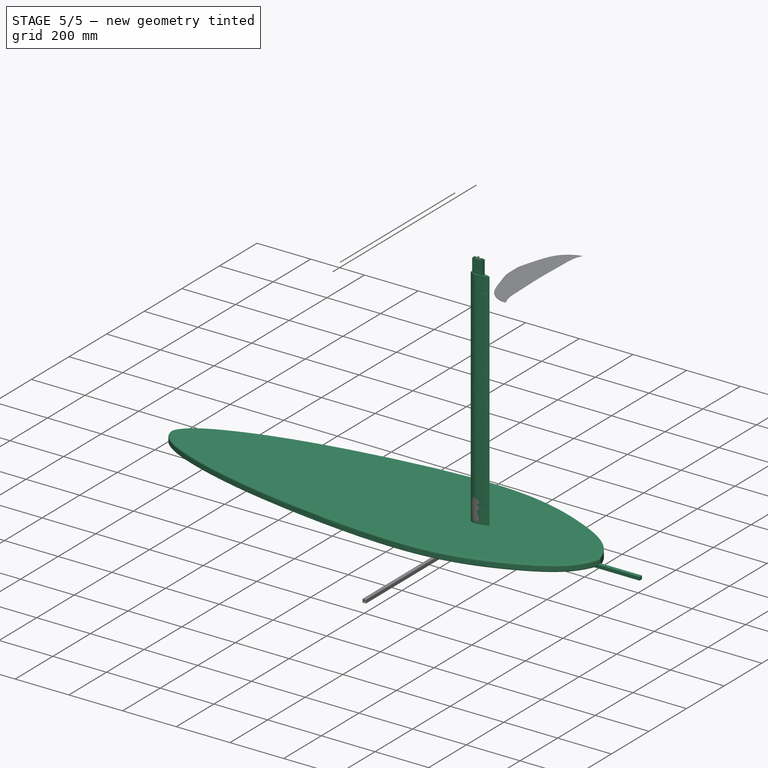
[diagram: stage 5 of 5 — iso view after this stage's code; geometry added in this stage tinted green]
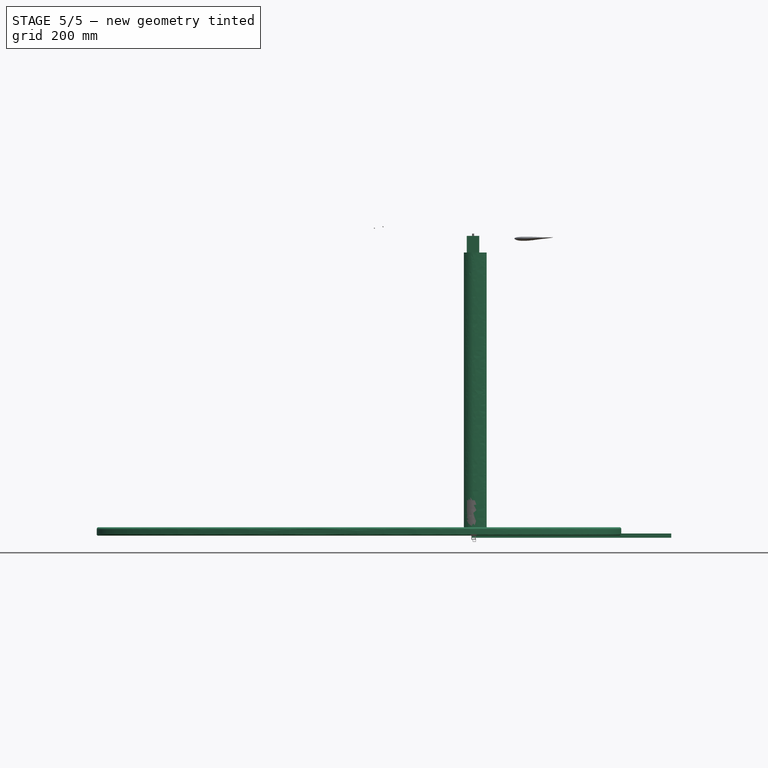
[diagram: stage 5 of 5 — front view after this stage's code; geometry added in this stage tinted green]
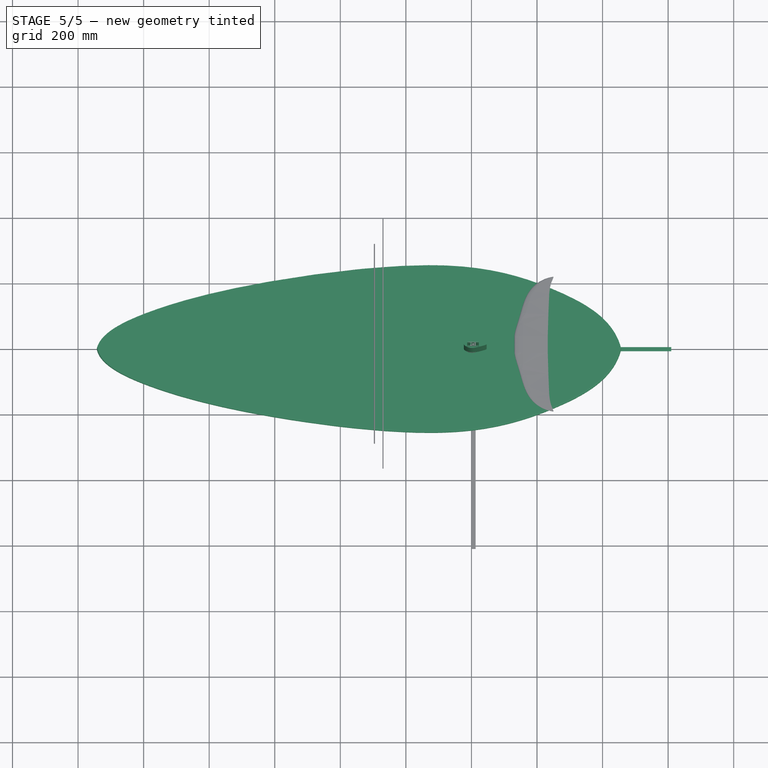
[diagram: stage 5 of 5 — top view after this stage's code; geometry added in this stage tinted green]
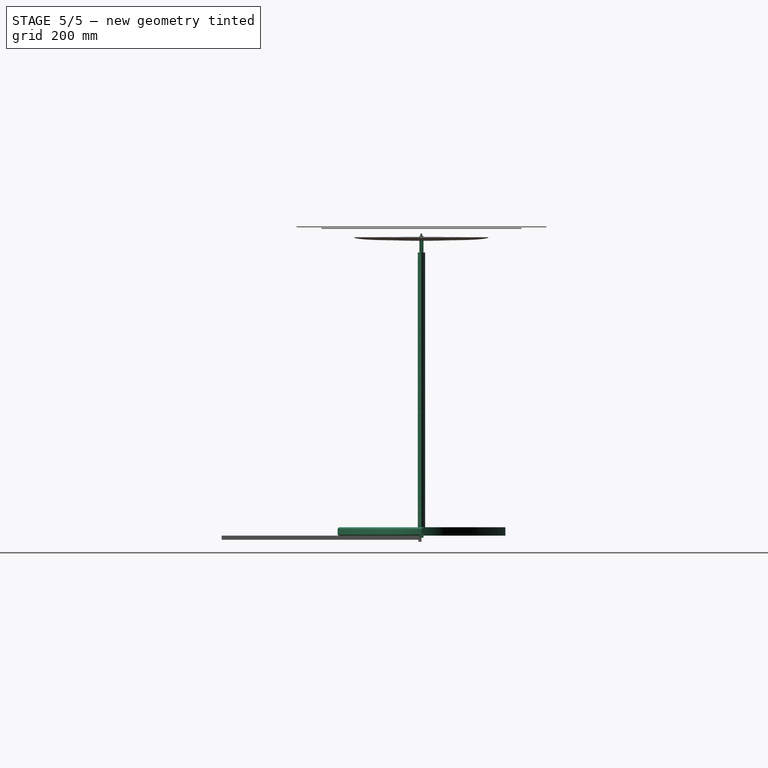
[diagram: stage 5 of 5 — right view after this stage's code; geometry added in this stage tinted green]
FEATURE [Sketcher::SketchObject] Sketch001
  FullyConstrained = true
  MapMode = 5
  Support = -> [XY_Plane001]
  sketch-geometry (30):
    g0-g6: Circle x7 (B-spline internal-alignment scaffolding for g7; pole/knot coordinates omitted)
    g7: BSplineCurve PolesCount=7 KnotsCount=5 Degree=3 IsPeriodic=0
    g8-g12: GeomPoint x5 (B-spline internal-alignment scaffolding for g7; pole/knot coordinates omitted)
    g13-g19: Circle x7 (B-spline internal-alignment scaffolding for g20; pole/knot coordinates omitted)
    g20: BSplineCurve PolesCount=7 KnotsCount=5 Degree=3 IsPeriodic=0
    g21-g25: GeomPoint x5 (B-spline internal-alignment scaffolding for g20; pole/knot coordinates omitted)
    g26: LineSegment StartX=-14.224 StartY=6.35 StartZ=0 EndX=23.876 EndY=6.35 EndZ=0
    g27: LineSegment StartX=23.876 StartY=6.35 StartZ=0 EndX=23.876 EndY=-6.35 EndZ=0
    g28: LineSegment StartX=23.876 StartY=-6.35 StartZ=0 EndX=-14.224 EndY=-6.35 EndZ=0
    g29: LineSegment StartX=-14.224 StartY=-6.35 StartZ=0 EndX=-14.224 EndY=6.35 EndZ=0
  constraints (41):
    c: Weight(g0) = 1
    c: PointOnObject(g7,g-1)
    c: Equal(g0, g1-g6) x6
    c: PointOnObject(g7,g-1)
    c: InternalAlignment(g0-g6 -> g7) x7
    c: InternalAlignment(g8-g12 -> g7) x5
    c: Weight(g13) = 1
    c: Coincident(g20,g7)
    c: Equal(g13, g14-g19) x6
    c: Coincident(g20,g7)
    c: InternalAlignment(g13-g19 -> g20) x7
    c: InternalAlignment(g21-g25 -> g20) x5
    c: Symmetric(g5,g18,g-1)
    c: Symmetric(g17,g4,g-1)
    c: Symmetric(g16,g3,g-1)
    c: Symmetric(g15,g2,g-1)
    c: Symmetric(g14,g1,g-1)
    c: DistanceX(g1) = -22.9374
    c: DistanceY(g1) = 2.42082
    c: DistanceX(g2) = -15.2249
    c: DistanceY(g2) = 7.63234
    c: DistanceX(g3) = -1.37492
    c: DistanceY(g3) = 12.3938
    c: DistanceX(g4) = 14.8709
    c: DistanceY(g4) = 9.92948
    c: DistanceX(g5) = 46.0558
    c: DistanceY(g5) = 1.90505
    c: Coincident(g26,g27)
    c: Coincident(g27,g28)
    c: Coincident(g28,g29)
    c: Coincident(g29,g26)
    c: Horizontal(g26)
    c: Horizontal(g28)
    c: Vertical(g27)
    c: Vertical(g29)
    c: DistanceY(g29,g29) = 12.7
    c: DistanceX(g26,g26) = 38.1
    c: DistanceY(g-1,g26) = 6.35
    c: DistanceX(g26,g-1) = 14.224
    c: DistanceX(g-1,g7) = 46.228
    c: DistanceX(g7,g-1) = 22.86
FEATURE [PartDesign::Pad] Pad001
  Direction = (0,0,1)
  Length = 863.6
  Length2 = 10
  Profile = -> Sketch001
  ReferenceAxis = -> Sketch001 [N_Axis]
  Type = 0
FEATURE [PartDesign::Body] Body001  label="Mast"
  Group = -> [Sketch001,Pad001]
  Origin = -> Origin001
  Placement = pos=(0,0,49.403) rot=(0,0,1;0rad)
  Tip = -> Pad001
FEATURE [Sketcher::SketchObject] Sketch003
  FullyConstrained = true
  MapMode = 5
  Support = -> [XY_Plane002]
  sketch-geometry (32):
    g0: GeomPoint X=-1143 Y=0 Z=0
    g1: GeomPoint X=457.2 Y=0 Z=0
    g2-g9: Circle x8 (B-spline internal-alignment scaffolding for g10; pole/knot coordinates omitted)
    g10: BSplineCurve PolesCount=8 KnotsCount=6 Degree=3 IsPeriodic=0
    g11-g16: GeomPoint x6 (B-spline internal-alignment scaffolding for g10; pole/knot coordinates omitted)
    g17-g24: Circle x8 (B-spline internal-alignment scaffolding for g25; pole/knot coordinates omitted)
    g25: BSplineCurve PolesCount=8 KnotsCount=6 Degree=3 IsPeriodic=0
    g26-g31: GeomPoint x6 (B-spline internal-alignment scaffolding for g25; pole/knot coordinates omitted)
  constraints (34):
    c: PointOnObject(g0,g-1)
    c: DistanceX(g0,g-1) = 1143
    c: PointOnObject(g1,g-1)
    c: DistanceX(g-1,g1) = 457.2
    c: Weight(g2) = 1
    c: Coincident(g10,g0)
    c: Equal(g2, g3-g9) x7
    c: Coincident(g10,g1)
    c: InternalAlignment(g2-g9 -> g10) x8
    c: InternalAlignment(g11-g16 -> g10) x6
    c: Weight(g17) = 1
    c: Coincident(g25,g10)
    c: Equal(g17, g18-g24) x7
    c: Coincident(g25,g10)
    c: InternalAlignment(g17-g24 -> g25) x8
    c: InternalAlignment(g26-g31 -> g25) x6
    c: Symmetric(g8,g23,g-1)
    c: Symmetric(g7,g22,g-1)
    c: Symmetric(g6,g21,g-1)
    c: Symmetric(g5,g20,g-1)
    c: Symmetric(g4,g19,g-1)
    c: Symmetric(g3,g18,g-1)
    c: DistanceX(g8) = 435.486
    c: DistanceY(g8) = 90.2091
    c: DistanceX(g7) = 267.582
    c: DistanceY(g7) = 186.903
    c: DistanceX(g6) = -45.8772
    c: DistanceY(g6) = 284.203
    c: DistanceX(g5) = -655.352
    c: DistanceY(g5) = 209.349
    c: DistanceX(g4) = -999.419
    c: DistanceY(g4) = 118.665
    c: DistanceX(g3) = -1133.96
    c: DistanceY(g3) = 47.2203
FEATURE [PartDesign::Pad] Pad002
  Direction = (0,0,1)
  Length = 25.4
  Length2 = 10
  Profile = -> Sketch003
  ReferenceAxis = -> Sketch003 [N_Axis]
  Type = 0
FEATURE [PartDesign::Fillet] Fillet
  Base = -> Pad002 [Edge6]
  BaseFeature = -> Pad002
  Radius = 6.35
  SupportTransform = false
  UseAllEdges = false
FEATURE [PartDesign::Fillet] Fillet001
  Base = -> Fillet [Edge8]
  BaseFeature = -> Fillet
  Radius = 5.08
  SupportTransform = false
  UseAllEdges = false
FEATURE [Sketcher::SketchObject] Sketch016
  FullyConstrained = true
  MapMode = 5
  Support = -> [XY_Plane008]
FEATURE [PartDesign::Body] Body008  label="Body"
  Group = -> [Sketch016]
  Origin = -> Origin008
FEATURE [Sketcher::SketchObject] Sketch017
  FullyConstrained = true
  MapMode = 5
  Placement = pos=(0,0,0) rot=(0.57735,0.57735,0.57735;2.0944rad)
  Support = -> [YZ_Plane009]
  sketch-geometry (4):
    g0: LineSegment StartX=-6.35 StartY=-6.35 StartZ=0 EndX=6.35 EndY=-6.35 EndZ=0
    g1: LineSegment StartX=6.35 StartY=-6.35 StartZ=0 EndX=6.35 EndY=6.35 EndZ=0
    g2: LineSegment StartX=6.35 StartY=6.35 StartZ=0 EndX=-6.35 EndY=6.35 EndZ=0
    g3: LineSegment StartX=-6.35 StartY=6.35 StartZ=0 EndX=-6.35 EndY=-6.35 EndZ=0
  constraints (12):
    c: Coincident(g0,g1)
    c: Coincident(g1,g2)
    c: Coincident(g2,g3)
    c: Coincident(g3,g0)
    c: Horizontal(g0)
    c: Horizontal(g2)
    c: Vertical(g1)
    c: Vertical(g3)
    c: DistanceY(g0,g1) = 12.7
    c: DistanceX(g2,g1) = 12.7
    c: DistanceX(g2) = -6.35
    c: DistanceY(g2) = 6.35
FEATURE [PartDesign::Pad] Pad003
  Direction = (1,-2e-16,3e-16)
  Length = 609.6
  Length2 = 10
  Placement = pos=(0,0,0) rot=(0.57735,0.57735,0.57735;2.0944rad)
  Profile = -> Sketch017
  ReferenceAxis = -> Sketch017 [N_Axis]
  Type = 0
FEATURE [PartDesign::Body] Body009  label="Fuselage"
  Group = -> [Sketch017,Pad003]
  Origin = -> Origin009
  Placement = pos=(-418.998,0,920.75) rot=(0,0,1;0rad)
  Tip = -> Pad003
FEATURE [Sketcher::SketchObject] Sketch018
  FullyConstrained = true
  MapMode = 5
  Support = -> [XY_Plane010]
  sketch-geometry (16):
    g0: LineSegment StartX=-14.2219 StartY=6.35 StartZ=0 EndX=23.8781 EndY=6.35 EndZ=0
    g1: LineSegment StartX=23.8781 StartY=6.35 StartZ=0 EndX=23.8781 EndY=-6.35 EndZ=0
    g2: LineSegment StartX=23.8781 StartY=-6.35 StartZ=0 EndX=-14.2219 EndY=-6.35 EndZ=0
    g3: LineSegment StartX=-14.2219 StartY=-6.35 StartZ=0 EndX=-14.2219 EndY=6.35 EndZ=0
    g4: LineSegment StartX=-12.6217 StartY=4.7498 StartZ=0 EndX=-3.12209 EndY=4.7498 EndZ=0
    g5: LineSegment StartX=-3.12209 StartY=4.7498 StartZ=0 EndX=-3.12209 EndY=-4.7498 EndZ=0
    g6: LineSegment StartX=-3.12209 StartY=-4.7498 StartZ=0 EndX=-12.6217 EndY=-4.7498 EndZ=0
    g7: LineSegment StartX=-12.6217 StartY=-4.7498 StartZ=0 EndX=-12.6217 EndY=4.7498 EndZ=0
    g8: LineSegment StartX=0.078306 StartY=4.7498 StartZ=0 EndX=9.57791 EndY=4.7498 EndZ=0
    g9: LineSegment StartX=9.57791 StartY=4.7498 StartZ=0 EndX=9.57791 EndY=-4.7498 EndZ=0
    g10: LineSegment StartX=9.57791 StartY=-4.7498 StartZ=0 EndX=0.078306 EndY=-4.7498 EndZ=0
    g11: LineSegment StartX=0.078306 StartY=-4.7498 StartZ=0 EndX=0.078306 EndY=4.7498 EndZ=0
    g12: LineSegment StartX=12.7783 StartY=4.7498 StartZ=0 EndX=22.2779 EndY=4.7498 EndZ=0
    g13: LineSegment StartX=22.2779 StartY=4.7498 StartZ=0 EndX=22.2779 EndY=-4.7498 EndZ=0
    g14: LineSegment StartX=22.2779 StartY=-4.7498 StartZ=0 EndX=12.7783 EndY=-4.7498 EndZ=0
    g15: LineSegment StartX=12.7783 StartY=-4.7498 StartZ=0 EndX=12.7783 EndY=4.7498 EndZ=0
  constraints (48):
    c: Coincident(g0,g1)
    c: Coincident(g1,g2)
    c: Coincident(g2,g3)
    c: Coincident(g3,g0)
    c: Horizontal(g0)
    c: Horizontal(g2)
    c: Vertical(g1)
    c: Vertical(g3)
    c: Coincident(g4,g5)
    c: Coincident(g5,g6)
    c: Coincident(g6,g7)
    c: Coincident(g7,g4)
    c: Horizontal(g4)
    c: Horizontal(g6)
    c: Vertical(g5)
    c: Vertical(g7)
    c: Coincident(g8,g9)
    c: Coincident(g9,g10)
    c: Coincident(g10,g11)
    c: Coincident(g11,g8)
    c: Horizontal(g8)
    c: Horizontal(g10)
    c: Vertical(g9)
    c: Vertical(g11)
    c: Coincident(g12,g13)
    c: Coincident(g13,g14)
    c: Coincident(g14,g15)
    c: Coincident(g15,g12)
    c: Horizontal(g12)
    c: Horizontal(g14)
    c: Vertical(g13)
    c: Vertical(g15)
    c: DistanceX(g0,g0) = 38.1
    c: DistanceX(g4,g8) = 3.2004
    c: DistanceX(g8,g12) = 3.2004
    c: DistanceY(g8,g4) = 0
    c: DistanceY(g12,g8) = 0
    c: DistanceY(g2,g6) = 1.6002
    c: DistanceY(g2,g0) = 12.7
    c: DistanceY(g-1,g0) = 6.35
    c: DistanceY(g10,g5) = 0
    c: DistanceY(g14,g9) = 0
    c: DistanceY(g12,g0) = 1.6002
    c: DistanceX(g0,g4) = 1.6002
    c: DistanceX(g0) = -14.2219
    c: DistanceX(g4,g4) = 9.4996
    c: DistanceX(g8,g8) = 9.4996
    c: DistanceX(g12,g12) = 9.4996
FEATURE [PartDesign::Pad] Pad004
  Direction = (0,0,1)
  Length = 914.4
  Length2 = 10
  Profile = -> Sketch018
  ReferenceAxis = -> Sketch018 [N_Axis]
  Type = 0
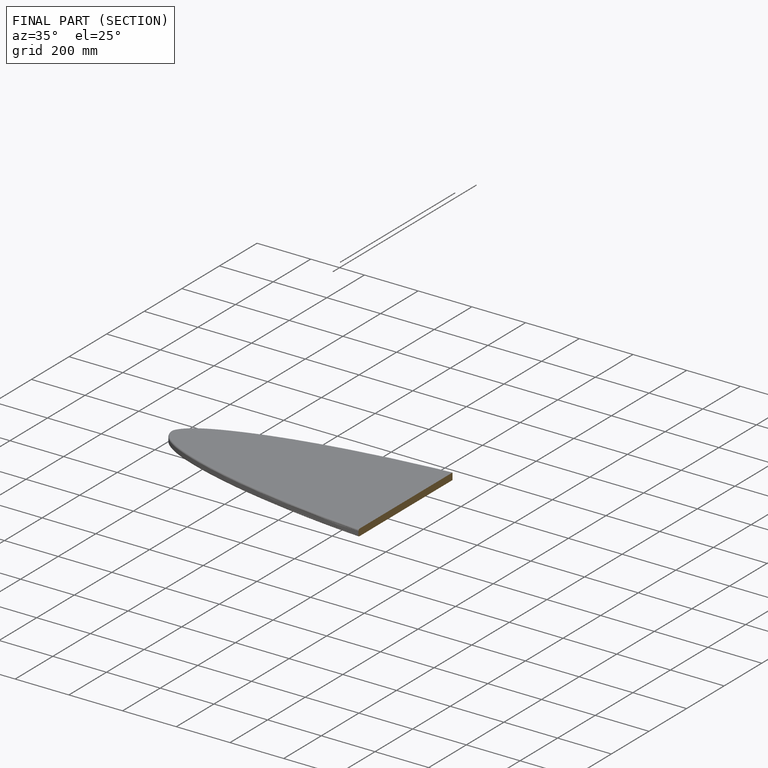
[diagram: finished part — half-section view (interior)]
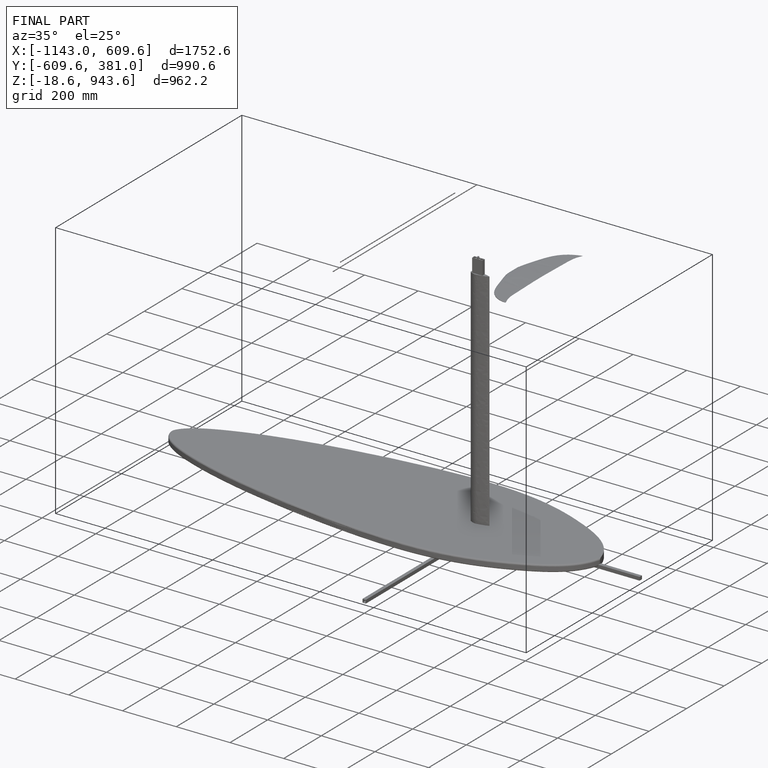
[diagram: finished part — iso view with bounding-box wireframe]
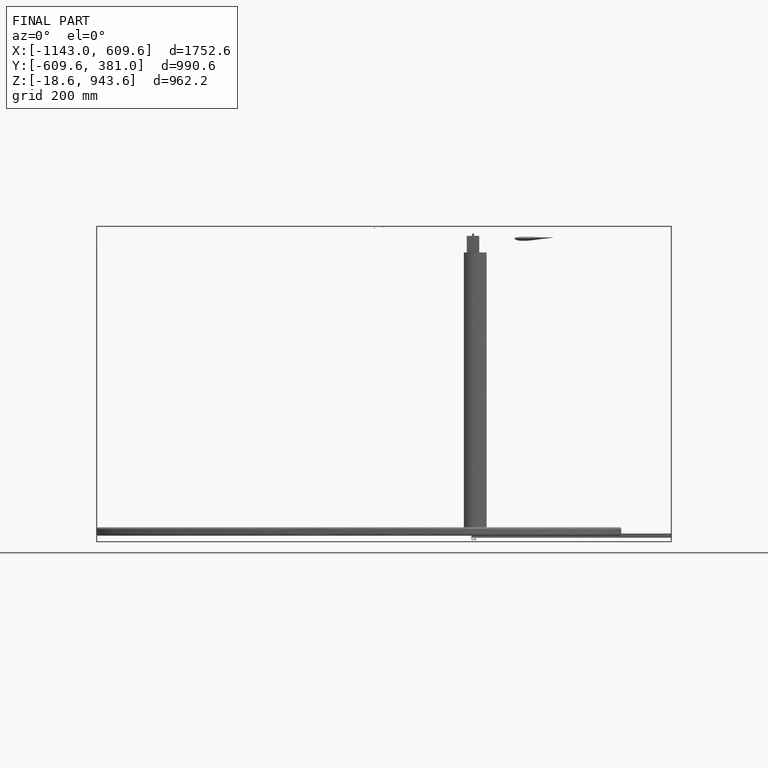
[diagram: finished part — front view with bounding-box wireframe]
